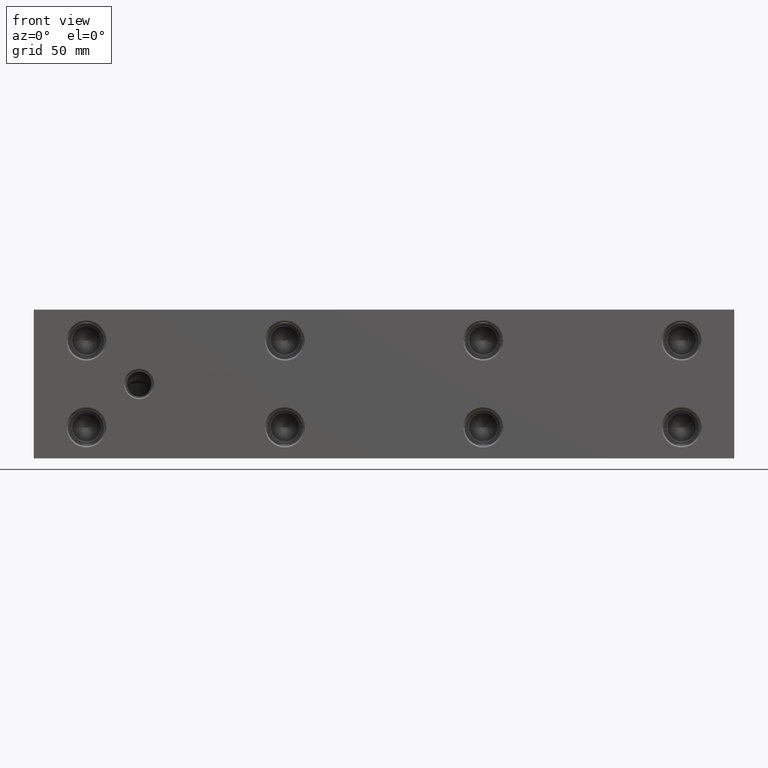
[diagram: clean part render]
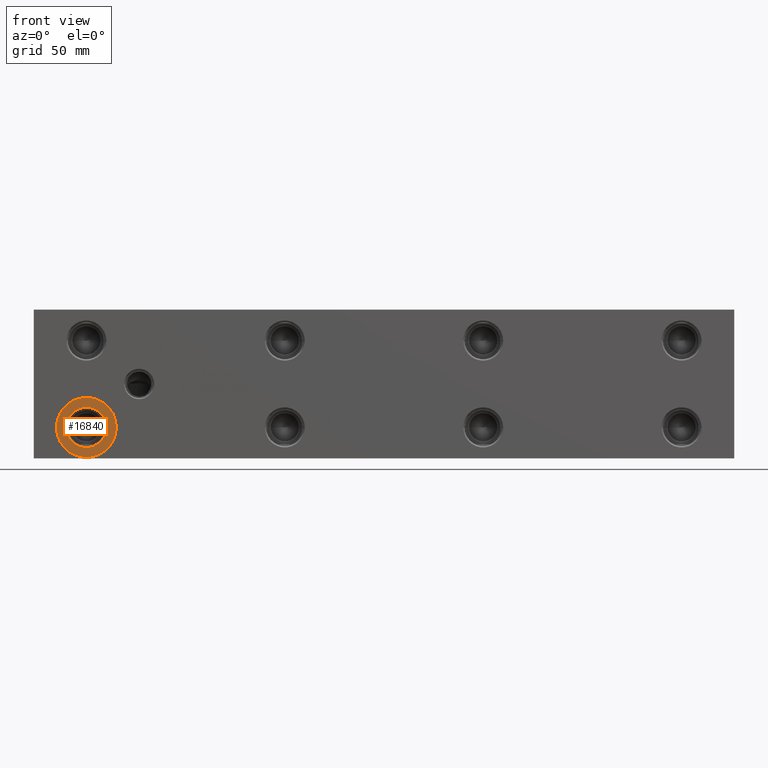
[diagram: same view with one face highlighted and labeled with its STEP entity id]
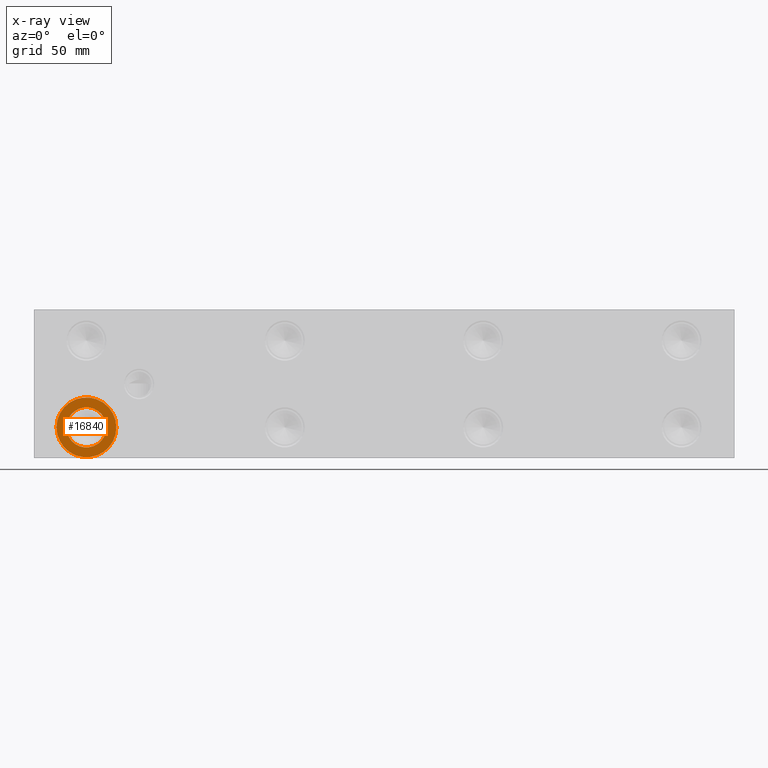
[diagram: x-ray of the same camera — body ghosted, the highlighted face saturated]
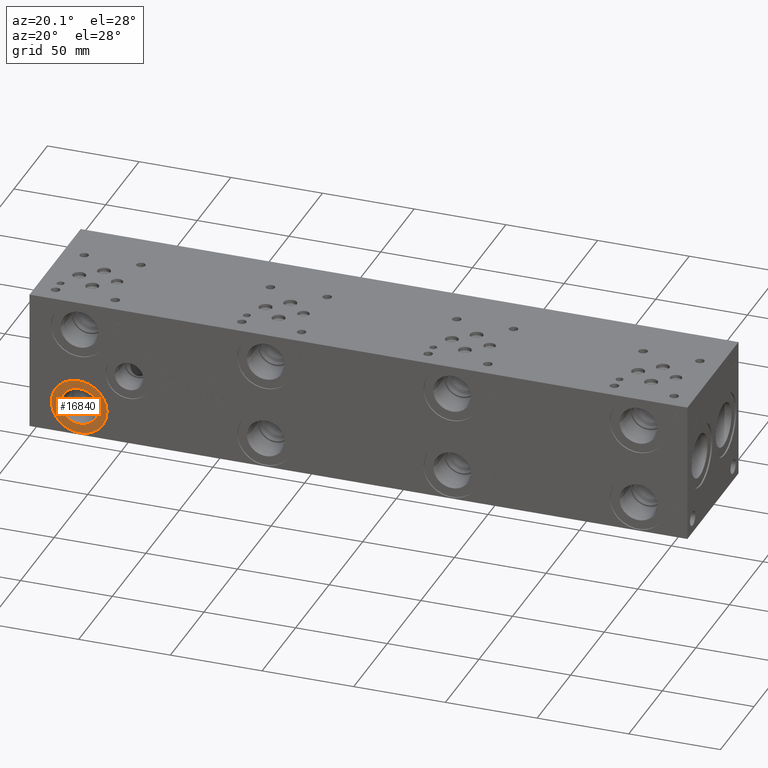
[diagram: same view with one face highlighted and labeled with its STEP entity id]
A machine part, front view. The second image highlights one B-rep face of the part: STEP entity #16840.
The next image is the same camera in x-ray: the body ghosted, the highlighted face saturated — about 0% of this face is hidden behind the body in this view.
A second angle (auxiliary view) of the same face is appended — the face is thin or edge-on in the first view.
In plain terms, the highlighted planar face has unit normal (0, 1, 0).
Its self-contained STEP definition (entity closure, byte-faithful):
#656=CIRCLE('',#17948,15.3162);
#657=CIRCLE('',#17949,15.3162);
#658=CIRCLE('',#17951,10.2997);
#659=CIRCLE('',#17952,10.2997);
#892=FACE_BOUND('',#3292,.T.);
#2300=FACE_OUTER_BOUND('',#3291,.T.);
#3291=EDGE_LOOP('',(#14512,#14513));
#3292=EDGE_LOOP('',(#14514,#14515));
#7841=VERTEX_POINT('',#28983);
#7842=VERTEX_POINT('',#28985);
#7843=VERTEX_POINT('',#28989);
#7844=VERTEX_POINT('',#28990);
#10132=EDGE_CURVE('',#7841,#7842,#656,.T.);
#10133=EDGE_CURVE('',#7842,#7841,#657,.T.);
#10134=EDGE_CURVE('',#7843,#7844,#658,.T.);
#10135=EDGE_CURVE('',#7844,#7843,#659,.T.);
#14512=ORIENTED_EDGE('',*,*,#10133,.F.);
#14513=ORIENTED_EDGE('',*,*,#10132,.F.);
#14514=ORIENTED_EDGE('',*,*,#10134,.T.);
#14515=ORIENTED_EDGE('',*,*,#10135,.T.);
#15472=PLANE('',#17950);
#16840=ADVANCED_FACE('',(#2300,#892),#15472,.F.);
#17948=AXIS2_PLACEMENT_3D('',#28986,#21549,#21550);
#17949=AXIS2_PLACEMENT_3D('',#28987,#21551,#21552);
#17950=AXIS2_PLACEMENT_3D('',#28988,#21553,#21554);
#17951=AXIS2_PLACEMENT_3D('',#28991,#21555,#21556);
#17952=AXIS2_PLACEMENT_3D('',#28992,#21557,#21558);
#21549=DIRECTION('center_axis',(0.,1.,0.));
#21550=DIRECTION('ref_axis',(1.,0.,0.));
#21551=DIRECTION('center_axis',(0.,1.,0.));
#21552=DIRECTION('ref_axis',(1.,0.,0.));
#21553=DIRECTION('center_axis',(0.,1.,0.));
#21554=DIRECTION('ref_axis',(0.,0.,1.));
#21555=DIRECTION('center_axis',(0.,1.,0.));
#21556=DIRECTION('ref_axis',(1.,0.,0.));
#21557=DIRECTION('center_axis',(0.,1.,0.));
#21558=DIRECTION('ref_axis',(1.,0.,0.));
#28983=CARTESIAN_POINT('',(11.6586,0.7874,15.875));
#28985=CARTESIAN_POINT('',(42.291,0.7874,15.875));
#28986=CARTESIAN_POINT('Origin',(26.9748,0.7874,15.875));
#28987=CARTESIAN_POINT('Origin',(26.9748,0.7874,15.875));
#28988=CARTESIAN_POINT('Origin',(37.2745,0.7874,15.875));
#28989=CARTESIAN_POINT('',(37.2745,0.7874,15.875));
#28990=CARTESIAN_POINT('',(16.6751,0.7874,15.875));
#28991=CARTESIAN_POINT('Origin',(26.9748,0.7874,15.875));
#28992=CARTESIAN_POINT('Origin',(26.9748,0.7874,15.875));